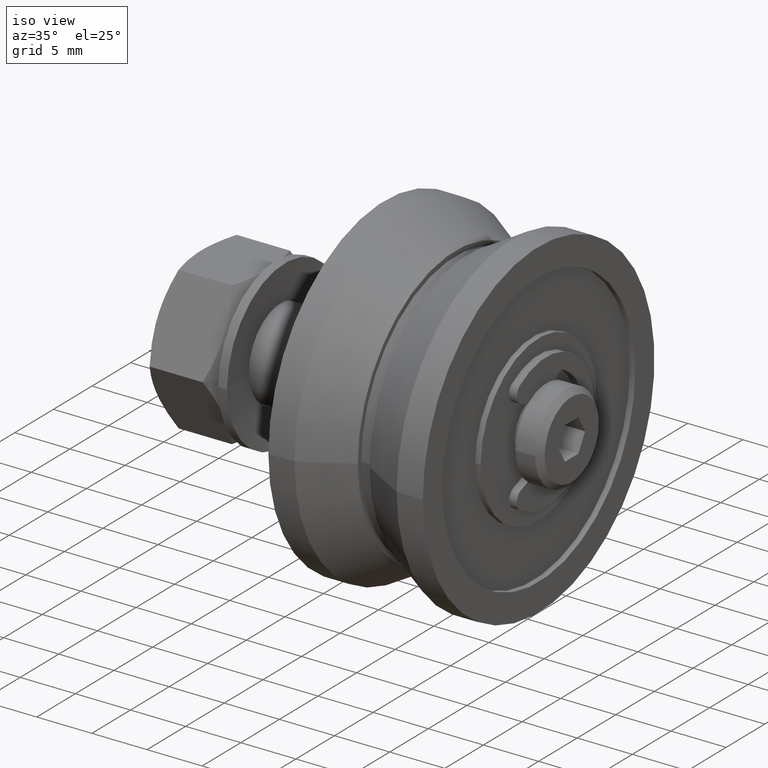
[diagram: clean part render]
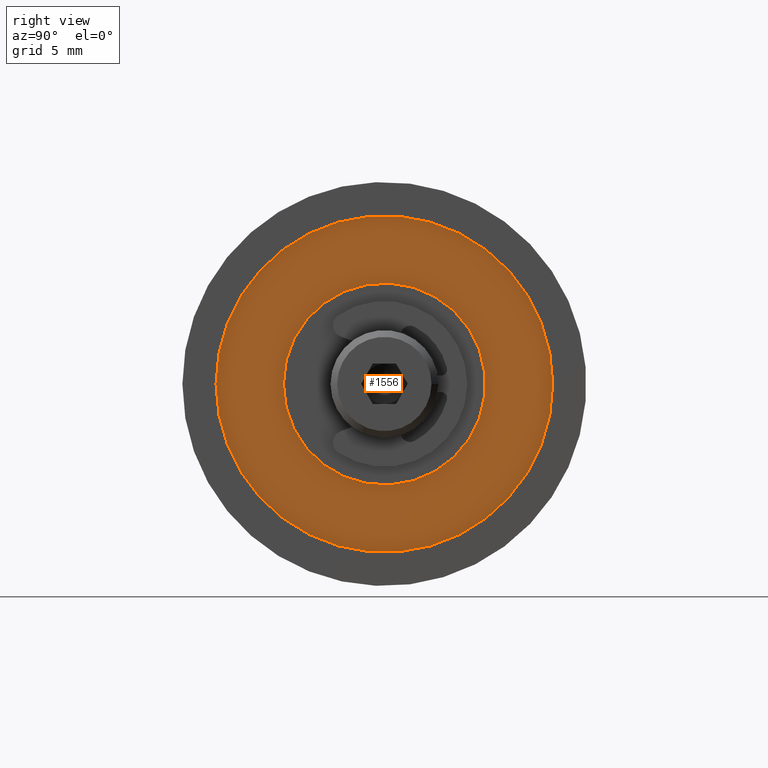
[diagram: tour spotlight — one face highlighted and labeled with its STEP entity id]
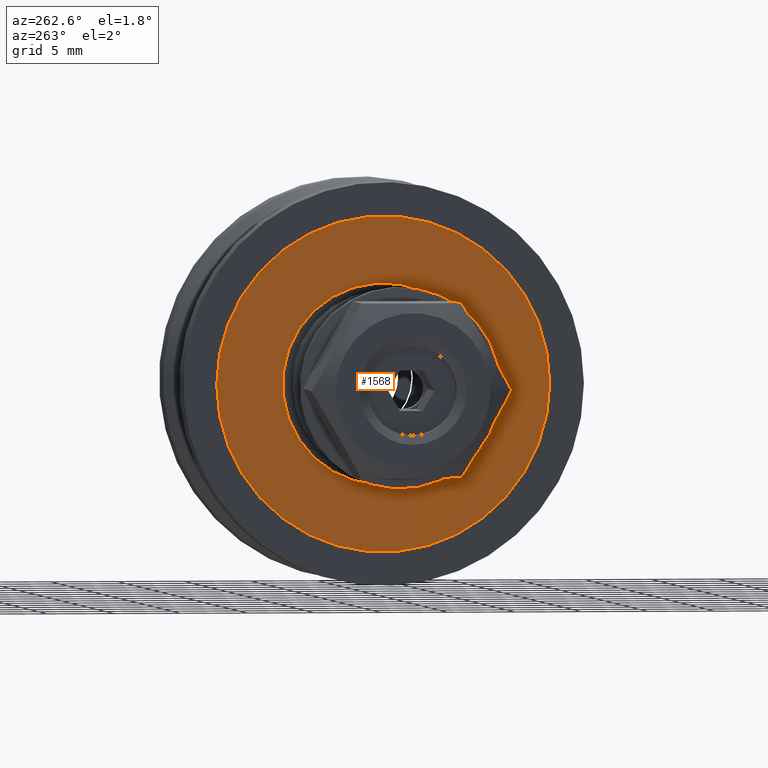
[diagram: tour spotlight — one face highlighted and labeled with its STEP entity id]
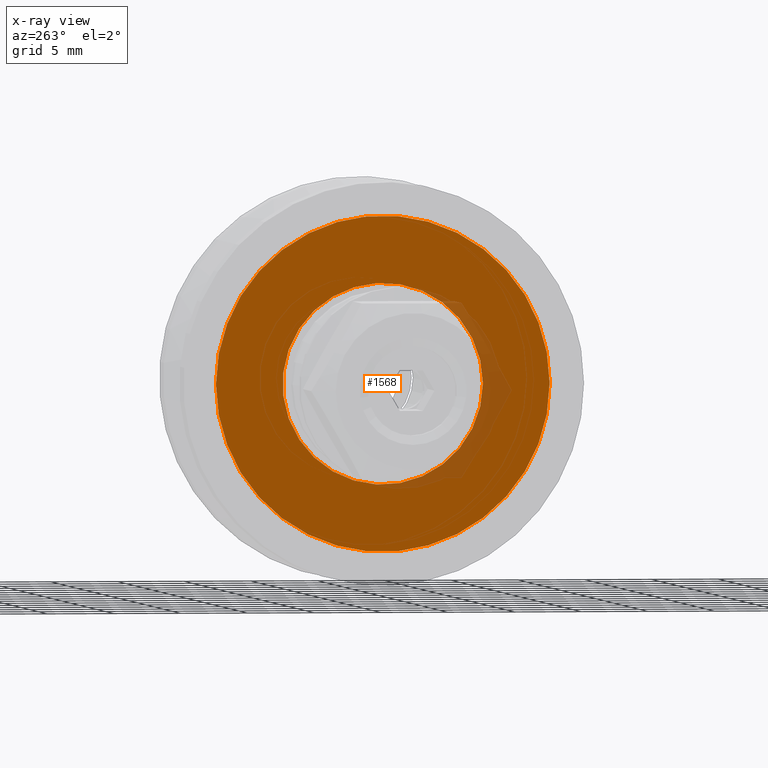
[diagram: x-ray of the same camera — body ghosted, this tour face saturated]
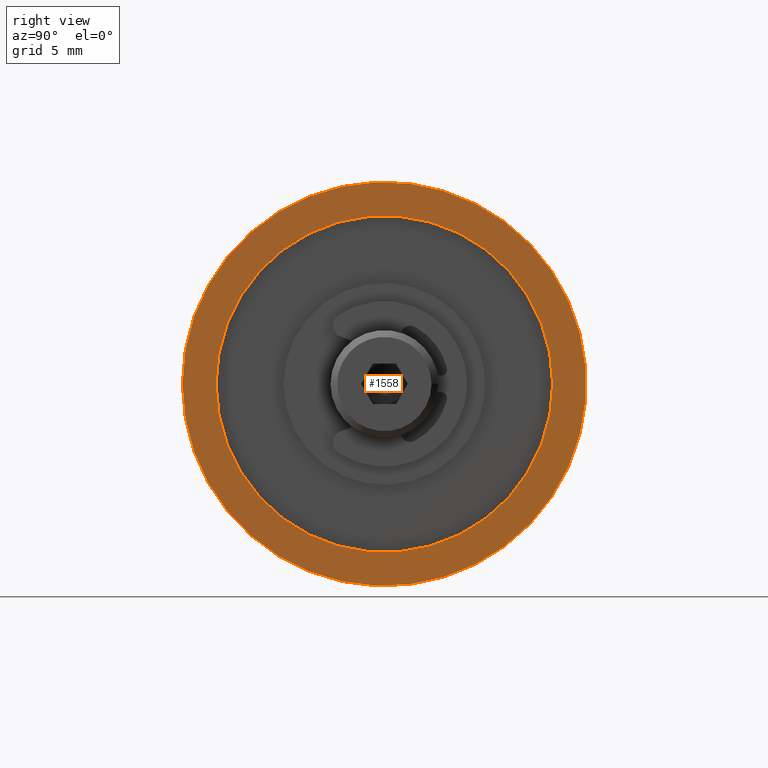
[diagram: tour spotlight — one face highlighted and labeled with its STEP entity id]
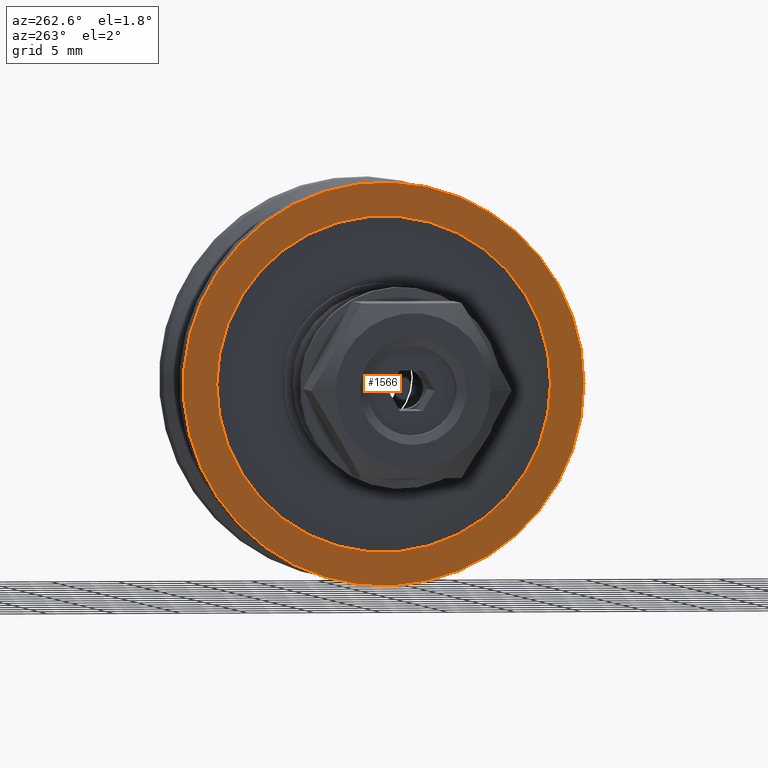
[diagram: tour spotlight — one face highlighted and labeled with its STEP entity id]
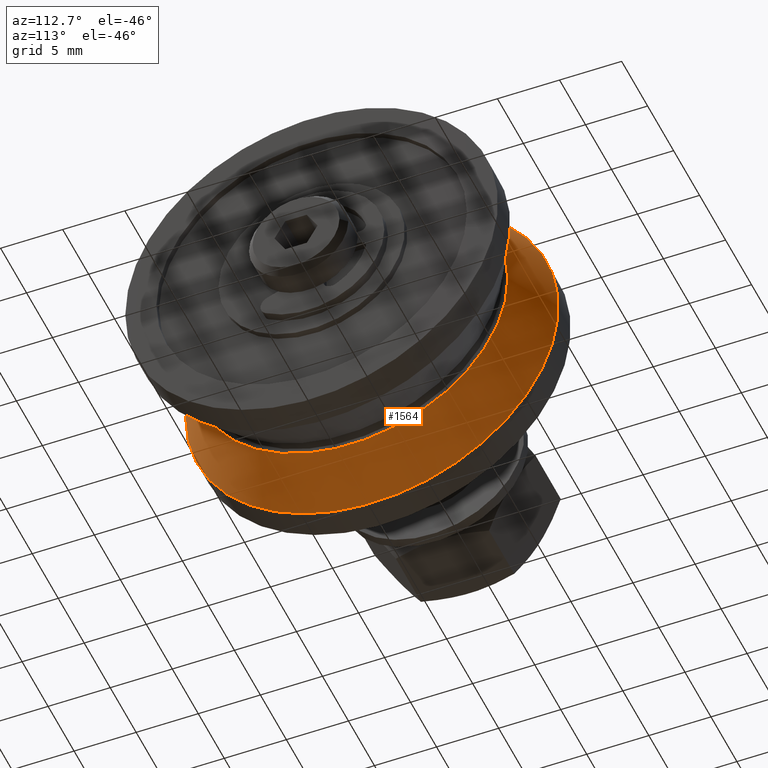
[diagram: tour spotlight — one face highlighted and labeled with its STEP entity id]
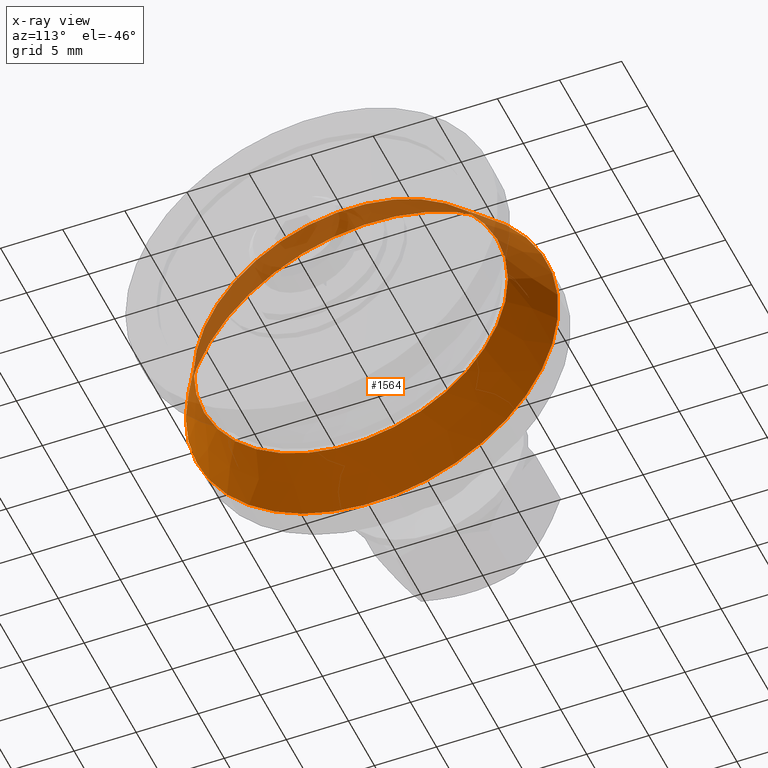
[diagram: x-ray of the same camera — body ghosted, this tour face saturated]
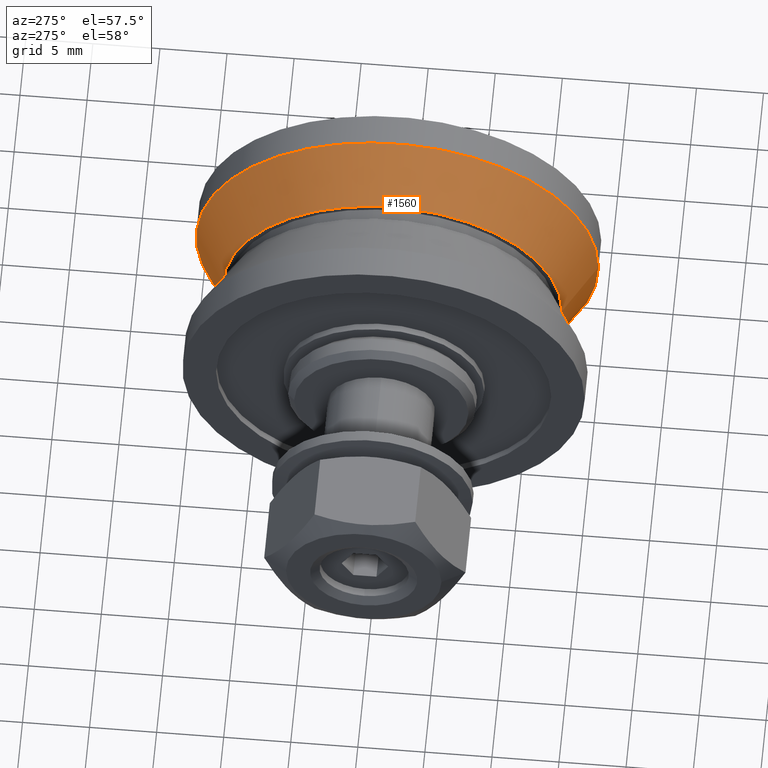
[diagram: tour spotlight — one face highlighted and labeled with its STEP entity id]
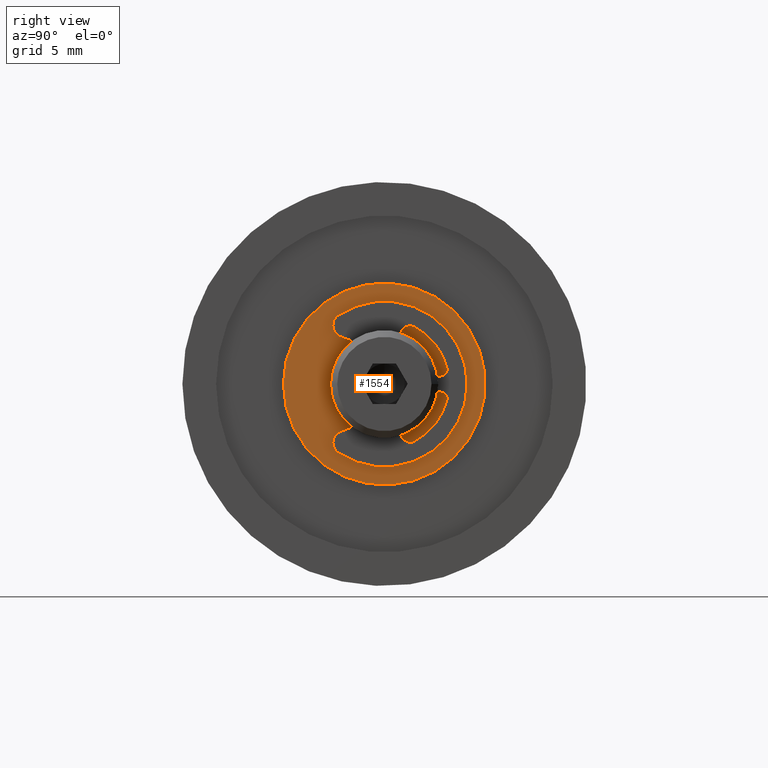
[diagram: tour spotlight — one face highlighted and labeled with its STEP entity id]
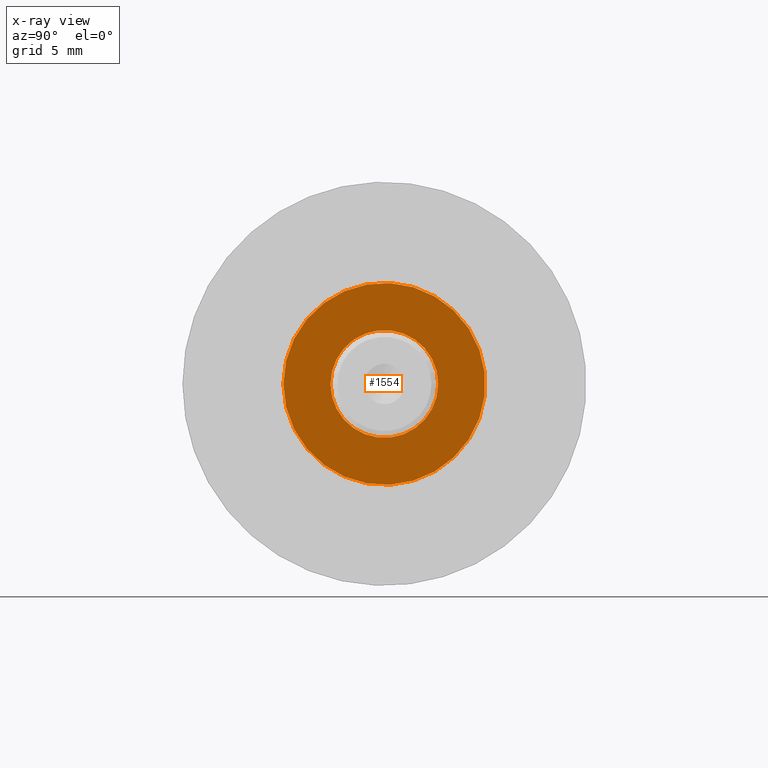
[diagram: x-ray of the same camera — body ghosted, this tour face saturated]
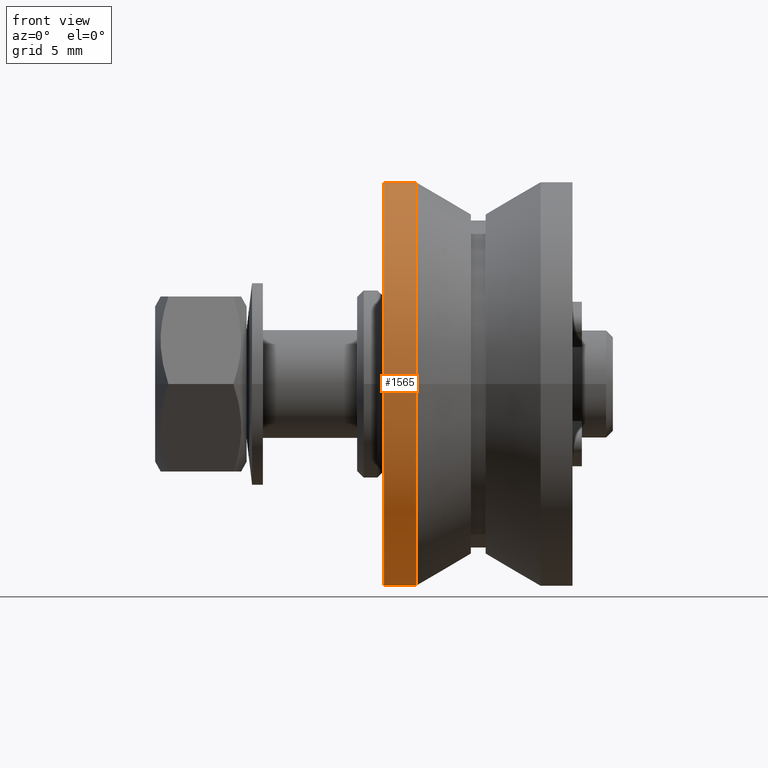
[diagram: tour spotlight — one face highlighted and labeled with its STEP entity id]
A machine part: a face-by-face anatomy tour. The part has 100 B-rep faces; the first image is the clean iso view, then the 8 largest visible faces are spotlighted one at a time (largest first), each with its STEP entity span.

Face 1 — right view, entity #1556. In plain terms, the highlighted planar face has unit normal (1, 0, 0).
Definition (entity closure, byte-faithful):
#70=FACE_BOUND('',#318,.T.);
#110=PLANE('',#1829);
#210=FACE_OUTER_BOUND('',#317,.T.);
#317=EDGE_LOOP('',(#1251));
#318=EDGE_LOOP('',(#1252));
#650=CIRCLE('',#1828,7.5);
#651=CIRCLE('',#1830,12.5);
#764=VERTEX_POINT('',#2663);
#765=VERTEX_POINT('',#2667);
#937=EDGE_CURVE('',#764,#764,#650,.T.);
#939=EDGE_CURVE('',#765,#765,#651,.T.);
#1251=ORIENTED_EDGE('',*,*,#939,.F.);
#1252=ORIENTED_EDGE('',*,*,#937,.T.);
#1556=ADVANCED_FACE('',(#210,#70),#110,.T.);
#1828=AXIS2_PLACEMENT_3D('',#2664,#2169,#2170);
#1829=AXIS2_PLACEMENT_3D('',#2666,#2172,#2173);
#1830=AXIS2_PLACEMENT_3D('',#2668,#2174,#2175);
#2169=DIRECTION('center_axis',(1.,0.,0.));
#2170=DIRECTION('ref_axis',(0.,1.,0.));
#2172=DIRECTION('center_axis',(-1.,0.,0.));
#2173=DIRECTION('ref_axis',(0.,0.,1.));
#2174=DIRECTION('center_axis',(1.,0.,0.));
#2175=DIRECTION('ref_axis',(0.,1.,0.));
#2663=CARTESIAN_POINT('',(-6.50000000000002,-7.5,-9.18485099360515E-16));
#2664=CARTESIAN_POINT('Origin',(-6.50000000000002,0.,0.));
#2666=CARTESIAN_POINT('Origin',(-6.50000000000002,10.,0.));
#2667=CARTESIAN_POINT('',(-6.50000000000002,-12.5,-1.53080849893419E-15));
#2668=CARTESIAN_POINT('Origin',(-6.50000000000002,0.,0.));

Face 2 — auxiliary view, entity #1568. An x-ray twin of the same camera follows (body ghosted, this face saturated) — the face is partly hidden behind the body. In plain terms, the highlighted planar face has unit normal (-1, 0, 0).
Definition (entity closure, byte-faithful):
#75=FACE_BOUND('',#335,.T.);
#115=PLANE('',#1853);
#222=FACE_OUTER_BOUND('',#334,.T.);
#334=EDGE_LOOP('',(#1289));
#335=EDGE_LOOP('',(#1290));
#662=CIRCLE('',#1852,12.5);
#663=CIRCLE('',#1854,7.5);
#776=VERTEX_POINT('',#2706);
#777=VERTEX_POINT('',#2710);
#957=EDGE_CURVE('',#776,#776,#662,.T.);
#958=EDGE_CURVE('',#777,#777,#663,.T.);
#1289=ORIENTED_EDGE('',*,*,#957,.T.);
#1290=ORIENTED_EDGE('',*,*,#958,.F.);
#1568=ADVANCED_FACE('',(#222,#75),#115,.T.);
#1852=AXIS2_PLACEMENT_3D('',#2708,#2225,#2226);
#1853=AXIS2_PLACEMENT_3D('',#2709,#2227,#2228);
#1854=AXIS2_PLACEMENT_3D('',#2711,#2229,#2230);
#2225=DIRECTION('center_axis',(1.,0.,0.));
#2226=DIRECTION('ref_axis',(0.,1.,0.));
#2227=DIRECTION('center_axis',(1.,0.,0.));
#2228=DIRECTION('ref_axis',(0.,0.,-1.));
#2229=DIRECTION('center_axis',(1.,0.,0.));
#2230=DIRECTION('ref_axis',(0.,1.,0.));
#2706=CARTESIAN_POINT('',(6.49999999999998,-12.5,-1.53080849893419E-15));
#2708=CARTESIAN_POINT('Origin',(6.49999999999998,0.,0.));
#2709=CARTESIAN_POINT('Origin',(6.49999999999998,10.,0.));
#2710=CARTESIAN_POINT('',(6.49999999999998,-7.5,-9.18485099360515E-16));
#2711=CARTESIAN_POINT('Origin',(6.49999999999998,0.,0.));

Face 3 — right view, entity #1558. In plain terms, the highlighted planar face has unit normal (1, 0, 0).
Definition (entity closure, byte-faithful):
#71=FACE_BOUND('',#321,.T.);
#111=PLANE('',#1833);
#212=FACE_OUTER_BOUND('',#320,.T.);
#320=EDGE_LOOP('',(#1257));
#321=EDGE_LOOP('',(#1258));
#652=CIRCLE('',#1832,12.5);
#653=CIRCLE('',#1834,15.);
#766=VERTEX_POINT('',#2670);
#767=VERTEX_POINT('',#2674);
#941=EDGE_CURVE('',#766,#766,#652,.T.);
#942=EDGE_CURVE('',#767,#767,#653,.T.);
#1257=ORIENTED_EDGE('',*,*,#942,.F.);
#1258=ORIENTED_EDGE('',*,*,#941,.T.);
#1558=ADVANCED_FACE('',(#212,#71),#111,.T.);
#1832=AXIS2_PLACEMENT_3D('',#2672,#2179,#2180);
#1833=AXIS2_PLACEMENT_3D('',#2673,#2181,#2182);
#1834=AXIS2_PLACEMENT_3D('',#2675,#2183,#2184);
#2179=DIRECTION('center_axis',(1.,0.,0.));
#2180=DIRECTION('ref_axis',(0.,1.,0.));
#2181=DIRECTION('center_axis',(-1.,0.,0.));
#2182=DIRECTION('ref_axis',(0.,0.,1.));
#2183=DIRECTION('center_axis',(1.,0.,0.));
#2184=DIRECTION('ref_axis',(0.,1.,0.));
#2670=CARTESIAN_POINT('',(-7.00000000000002,-12.5,-1.53080849893419E-15));
#2672=CARTESIAN_POINT('Origin',(-7.00000000000002,0.,0.));
#2673=CARTESIAN_POINT('Origin',(-7.,13.75,0.));
#2674=CARTESIAN_POINT('',(-6.99999999999999,-15.,-1.83697019872103E-15));
#2675=CARTESIAN_POINT('Origin',(-6.99999999999999,0.,0.));

Face 4 — auxiliary view, entity #1566. In plain terms, the highlighted planar face has unit normal (-1, 0, 0).
Definition (entity closure, byte-faithful):
#74=FACE_BOUND('',#332,.T.);
#114=PLANE('',#1849);
#220=FACE_OUTER_BOUND('',#331,.T.);
#331=EDGE_LOOP('',(#1283));
#332=EDGE_LOOP('',(#1284));
#660=CIRCLE('',#1848,15.);
#661=CIRCLE('',#1850,12.5);
#774=VERTEX_POINT('',#2699);
#775=VERTEX_POINT('',#2703);
#953=EDGE_CURVE('',#774,#774,#660,.T.);
#955=EDGE_CURVE('',#775,#775,#661,.T.);
#1283=ORIENTED_EDGE('',*,*,#953,.T.);
#1284=ORIENTED_EDGE('',*,*,#955,.F.);
#1566=ADVANCED_FACE('',(#220,#74),#114,.T.);
#1848=AXIS2_PLACEMENT_3D('',#2700,#2215,#2216);
#1849=AXIS2_PLACEMENT_3D('',#2702,#2218,#2219);
#1850=AXIS2_PLACEMENT_3D('',#2704,#2220,#2221);
#2215=DIRECTION('center_axis',(1.,0.,0.));
#2216=DIRECTION('ref_axis',(0.,1.,0.));
#2218=DIRECTION('center_axis',(1.,0.,0.));
#2219=DIRECTION('ref_axis',(0.,0.,-1.));
#2220=DIRECTION('center_axis',(1.,0.,0.));
#2221=DIRECTION('ref_axis',(0.,1.,0.));
#2699=CARTESIAN_POINT('',(7.00000000000001,-15.,-1.83697019872103E-15));
#2700=CARTESIAN_POINT('Origin',(7.00000000000001,0.,0.));
#2702=CARTESIAN_POINT('Origin',(7.,13.75,0.));
#2703=CARTESIAN_POINT('',(6.99999999999998,-12.5,-1.53080849893419E-15));
#2704=CARTESIAN_POINT('Origin',(6.99999999999998,0.,0.));

Face 5 — auxiliary view, entity #1564. An x-ray twin of the same camera follows (body ghosted, this face saturated) — the face is partly hidden behind the body. In plain terms, the highlighted conical surface has half-angle 30 deg.
Definition (entity closure, byte-faithful):
#218=FACE_OUTER_BOUND('',#329,.T.);
#329=EDGE_LOOP('',(#1275,#1276,#1277,#1278));
#447=LINE('',#2697,#565);
#565=VECTOR('',#2212,13.822019978079);
#658=CIRCLE('',#1844,12.644039956158);
#659=CIRCLE('',#1846,15.);
#772=VERTEX_POINT('',#2692);
#773=VERTEX_POINT('',#2695);
#950=EDGE_CURVE('',#772,#772,#658,.T.);
#951=EDGE_CURVE('',#773,#773,#659,.T.);
#952=EDGE_CURVE('',#773,#772,#447,.T.);
#1275=ORIENTED_EDGE('',*,*,#951,.F.);
#1276=ORIENTED_EDGE('',*,*,#952,.T.);
#1277=ORIENTED_EDGE('',*,*,#950,.T.);
#1278=ORIENTED_EDGE('',*,*,#952,.F.);
#1504=CONICAL_SURFACE('',#1845,13.822019978079,0.523598775598297);
#1564=ADVANCED_FACE('',(#218),#1504,.T.);
#1844=AXIS2_PLACEMENT_3D('',#2693,#2206,#2207);
#1845=AXIS2_PLACEMENT_3D('',#2694,#2208,#2209);
#1846=AXIS2_PLACEMENT_3D('',#2696,#2210,#2211);
#2206=DIRECTION('center_axis',(1.,0.,0.));
#2207=DIRECTION('ref_axis',(0.,1.,0.));
#2208=DIRECTION('center_axis',(1.,0.,0.));
#2209=DIRECTION('ref_axis',(0.,1.,0.));
#2210=DIRECTION('center_axis',(1.,0.,0.));
#2211=DIRECTION('ref_axis',(0.,1.,0.));
#2212=DIRECTION('',(-0.86602540378444,0.499999999999998,6.12323399573675E-17));
#2692=CARTESIAN_POINT('',(0.55,-12.644039956158,-1.54844830606002E-15));
#2693=CARTESIAN_POINT('Origin',(0.55,0.,0.));
#2694=CARTESIAN_POINT('Origin',(2.59032124826824,0.,0.));
#2695=CARTESIAN_POINT('',(4.63064249653649,-15.,-1.83697019872103E-15));
#2696=CARTESIAN_POINT('Origin',(4.63064249653649,0.,0.));
#2697=CARTESIAN_POINT('',(2.59032124826824,-13.822019978079,-1.69270925239052E-15));

Face 6 — auxiliary view, entity #1560. In plain terms, the highlighted conical surface has half-angle 30 deg.
Definition (entity closure, byte-faithful):
#214=FACE_OUTER_BOUND('',#323,.T.);
#323=EDGE_LOOP('',(#1263,#1264,#1265,#1266));
#445=LINE('',#2683,#563);
#563=VECTOR('',#2194,13.822019978079);
#654=CIRCLE('',#1836,15.);
#655=CIRCLE('',#1838,12.644039956158);
#768=VERTEX_POINT('',#2677);
#769=VERTEX_POINT('',#2681);
#943=EDGE_CURVE('',#768,#768,#654,.T.);
#945=EDGE_CURVE('',#769,#769,#655,.T.);
#946=EDGE_CURVE('',#769,#768,#445,.T.);
#1263=ORIENTED_EDGE('',*,*,#945,.F.);
#1264=ORIENTED_EDGE('',*,*,#946,.T.);
#1265=ORIENTED_EDGE('',*,*,#943,.T.);
#1266=ORIENTED_EDGE('',*,*,#946,.F.);
#1503=CONICAL_SURFACE('',#1837,13.822019978079,0.5235987755983);
#1560=ADVANCED_FACE('',(#214),#1503,.T.);
#1836=AXIS2_PLACEMENT_3D('',#2678,#2187,#2188);
#1837=AXIS2_PLACEMENT_3D('',#2680,#2190,#2191);
#1838=AXIS2_PLACEMENT_3D('',#2682,#2192,#2193);
#2187=DIRECTION('center_axis',(1.,0.,0.));
#2188=DIRECTION('ref_axis',(0.,1.,0.));
#2190=DIRECTION('center_axis',(-1.,0.,0.));
#2191=DIRECTION('ref_axis',(0.,1.,0.));
#2192=DIRECTION('center_axis',(1.,0.,0.));
#2193=DIRECTION('ref_axis',(0.,1.,0.));
#2194=DIRECTION('',(-0.866025403784438,-0.500000000000001,-6.12323399573677E-17));
#2677=CARTESIAN_POINT('',(-4.63064249653646,-15.,-1.83697019872103E-15));
#2678=CARTESIAN_POINT('Origin',(-4.63064249653646,0.,0.));
#2680=CARTESIAN_POINT('Origin',(-2.59032124826823,0.,0.));
#2681=CARTESIAN_POINT('',(-0.550000000000001,-12.644039956158,-1.54844830606002E-15));
#2682=CARTESIAN_POINT('Origin',(-0.55,0.,0.));
#2683=CARTESIAN_POINT('',(-2.59032124826823,-13.822019978079,-1.69270925239052E-15));

Face 7 — right view, entity #1554. An x-ray twin of the same camera follows (body ghosted, this face saturated) — the face is partly hidden behind the body. In plain terms, the highlighted planar face has unit normal (1, 0, 0).
Definition (entity closure, byte-faithful):
#69=FACE_BOUND('',#315,.T.);
#109=PLANE('',#1824);
#208=FACE_OUTER_BOUND('',#314,.T.);
#314=EDGE_LOOP('',(#1245));
#315=EDGE_LOOP('',(#1246));
#648=CIRCLE('',#1825,7.5);
#649=CIRCLE('',#1826,4.);
#762=VERTEX_POINT('',#2658);
#763=VERTEX_POINT('',#2660);
#935=EDGE_CURVE('',#762,#762,#648,.T.);
#936=EDGE_CURVE('',#763,#763,#649,.T.);
#1245=ORIENTED_EDGE('',*,*,#935,.F.);
#1246=ORIENTED_EDGE('',*,*,#936,.T.);
#1554=ADVANCED_FACE('',(#208,#69),#109,.T.);
#1824=AXIS2_PLACEMENT_3D('',#2657,#2161,#2162);
#1825=AXIS2_PLACEMENT_3D('',#2659,#2163,#2164);
#1826=AXIS2_PLACEMENT_3D('',#2661,#2165,#2166);
#2161=DIRECTION('center_axis',(-1.,0.,0.));
#2162=DIRECTION('ref_axis',(0.,0.,1.));
#2163=DIRECTION('center_axis',(1.,0.,0.));
#2164=DIRECTION('ref_axis',(0.,1.,0.));
#2165=DIRECTION('center_axis',(1.,0.,0.));
#2166=DIRECTION('ref_axis',(0.,1.,0.));
#2657=CARTESIAN_POINT('Origin',(-7.00000000000002,5.75,0.));
#2658=CARTESIAN_POINT('',(-7.00000000000002,-7.5,-9.18485099360515E-16));
#2659=CARTESIAN_POINT('Origin',(-7.00000000000002,0.,0.));
#2660=CARTESIAN_POINT('',(-7.00000000000002,-4.,-4.89858719658941E-16));
#2661=CARTESIAN_POINT('Origin',(-7.00000000000002,0.,0.));

Face 8 — front view, entity #1565. In plain terms, the highlighted cylindrical surface (bore or boss wall) has radius 15 mm, axis along (-1, 0, 0).
Definition (entity closure, byte-faithful):
#144=CYLINDRICAL_SURFACE('',#1847,15.);
#219=FACE_OUTER_BOUND('',#330,.T.);
#330=EDGE_LOOP('',(#1279,#1280,#1281,#1282));
#448=LINE('',#2701,#566);
#566=VECTOR('',#2217,15.);
#659=CIRCLE('',#1846,15.);
#660=CIRCLE('',#1848,15.);
#773=VERTEX_POINT('',#2695);
#774=VERTEX_POINT('',#2699);
#951=EDGE_CURVE('',#773,#773,#659,.T.);
#953=EDGE_CURVE('',#774,#774,#660,.T.);
#954=EDGE_CURVE('',#774,#773,#448,.T.);
#1279=ORIENTED_EDGE('',*,*,#953,.F.);
#1280=ORIENTED_EDGE('',*,*,#954,.T.);
#1281=ORIENTED_EDGE('',*,*,#951,.T.);
#1282=ORIENTED_EDGE('',*,*,#954,.F.);
#1565=ADVANCED_FACE('',(#219),#144,.T.);
#1846=AXIS2_PLACEMENT_3D('',#2696,#2210,#2211);
#1847=AXIS2_PLACEMENT_3D('',#2698,#2213,#2214);
#1848=AXIS2_PLACEMENT_3D('',#2700,#2215,#2216);
#2210=DIRECTION('center_axis',(1.,0.,0.));
#2211=DIRECTION('ref_axis',(0.,1.,0.));
#2213=DIRECTION('center_axis',(1.,0.,0.));
#2214=DIRECTION('ref_axis',(0.,1.,0.));
#2215=DIRECTION('center_axis',(1.,0.,0.));
#2216=DIRECTION('ref_axis',(0.,1.,0.));
#2217=DIRECTION('',(-1.,0.,0.));
#2695=CARTESIAN_POINT('',(4.63064249653649,-15.,-1.83697019872103E-15));
#2696=CARTESIAN_POINT('Origin',(4.63064249653649,0.,0.));
#2698=CARTESIAN_POINT('Origin',(5.81532124826825,0.,0.));
#2699=CARTESIAN_POINT('',(7.00000000000001,-15.,-1.83697019872103E-15));
#2700=CARTESIAN_POINT('Origin',(7.00000000000001,0.,0.));
#2701=CARTESIAN_POINT('',(5.81532124826825,-15.,-1.83697019872103E-15));